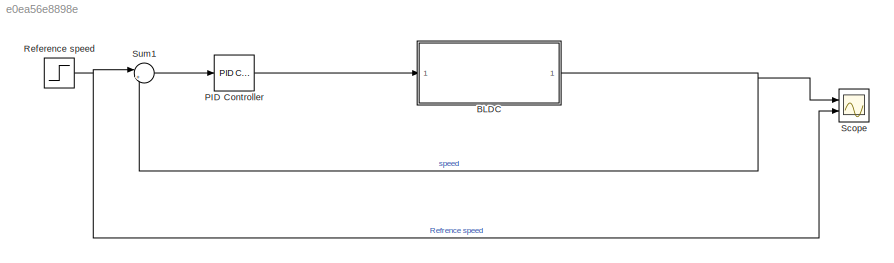
MODEL slx_e0ea56e8898e
KIND model
CONFIG AbsTol = auto
CONFIG EnableMultiTasking = off
CONFIG FixedStep = auto
CONFIG MaxStep = auto
CONFIG MinStep = auto
CONFIG RelTol = 1e-3
CONFIG SampleTimeConstraint = Unconstrained
CONFIG SolverName = VariableStepAuto
CONFIG StartTime = 0.0
CONFIG StopTime = 3
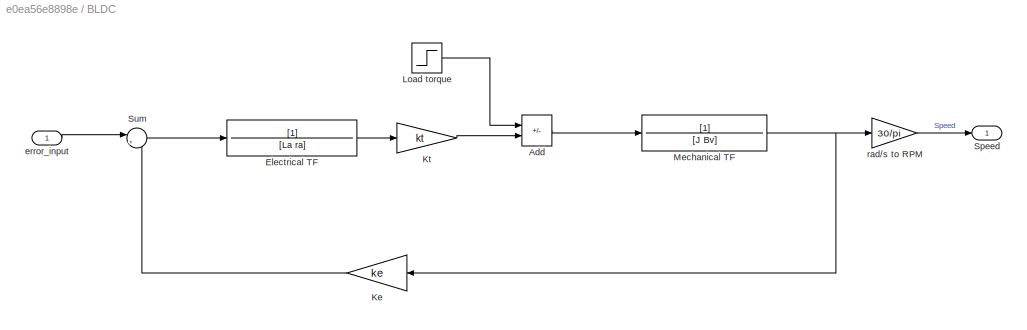
BLOCK [SubSystem] BLDC
  Ports = [1, 1]
  RequestExecContextInheritance = off
BLOCK [Sum] BLDC/Add
  IconShape = rectangular
  Inputs = -+
  Ports = [2, 1]
BLOCK [TransferFcn] BLDC/Electrical TF
  Denominator = [La ra]
BLOCK [Gain] BLDC/Ke
  Gain = ke
  NameLocation = top
BLOCK [Gain] BLDC/Kt
  Gain = kt
BLOCK [Step] BLDC/Load torque
  After = 10
  SampleTime = 0
BLOCK [TransferFcn] BLDC/Mechanical TF
  Denominator = [J Bv]
BLOCK [Outport] BLDC/Speed
BLOCK [Sum] BLDC/Sum
  Inputs = |+-
  Ports = [2, 1]
BLOCK [Inport] BLDC/error_input
BLOCK [Gain] BLDC/rad//s to RPM 
  Gain = 30/pi
BLOCK [Reference] PID Controller  REF=pid_lib/PID Controller
  Ports = [1, 1]
  SourceBlock = pid_lib/PID Controller
  SourceProductBaseCode = SL
  SourceType = PID 1dof
BLOCK [Step] Reference speed
  After = 1500
  SampleTime = 0
BLOCK [Scope] Scope
  Floating = off
  NumInputPorts = 2
  Ports = [2]
  ScopeSpecificationString = Simulink.scopes.TimeScopeBlockCfg('CurrentConfiguration', extmgr.ConfigurationSet(extmgr.Configuration('Core','General UI',true),extmgr.Configuration('Core','Source UI',true),extmgr.Configuration('Sources','WiredSimulink',true),extmgr.Configuration('Visuals','Time Domain',true,'SerializedDisplays',{struct('MinYLimReal','-208.73513','MaxYLimReal','1689.89094','YLabelReal','','MinYLimMag',' 0.00000'...<+2012ch>
BLOCK [Sum] Sum1
  Inputs = |+-
  Ports = [2, 1]
LINE BLDC/Add:1 -> BLDC/Mechanical TF:1
LINE BLDC/Electrical TF:1 -> BLDC/Kt:1
LINE BLDC/Ke:1 -> BLDC/Sum:2
LINE BLDC/Kt:1 -> BLDC/Add:2
LINE BLDC/Load torque:1 -> BLDC/Add:1
NET BLDC/Mechanical TF:1 -> BLDC/Ke:1, BLDC/rad//s to RPM :1
LINE BLDC/Sum:1 -> BLDC/Electrical TF:1
LINE BLDC/error_input:1 -> BLDC/Sum:1
LINE BLDC/rad//s to RPM :1 -> BLDC/Speed:1
NET BLDC:1 -> Scope:1, Sum1:2
LINE PID Controller:1 -> BLDC:1
NET Reference speed:1 -> Scope:2, Sum1:1
LINE Sum1:1 -> PID Controller:1
note: NET lines group one-source signal fan-out (src -> all destinations, sorted); 1:1 wires keep LINE
